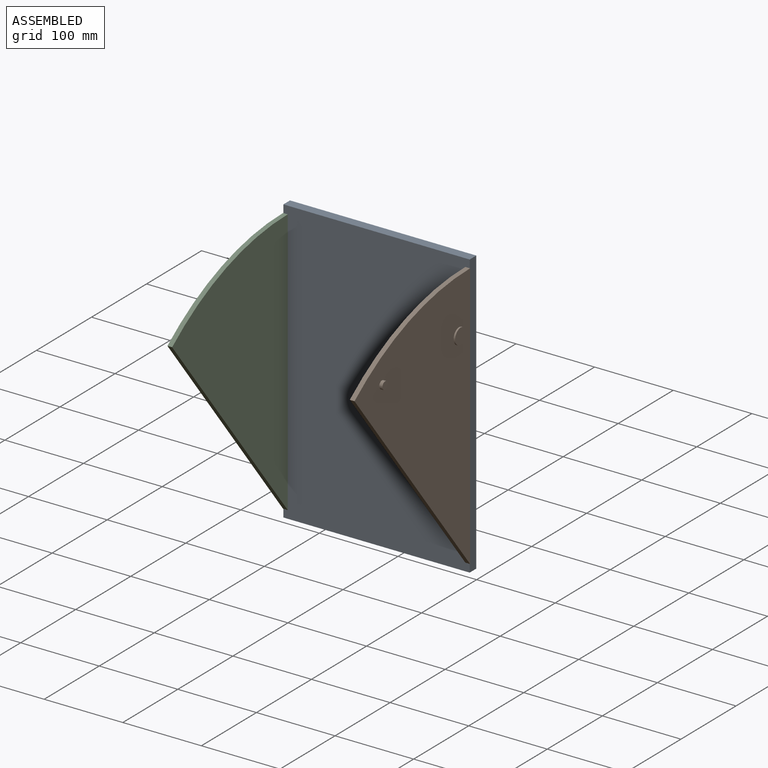
[diagram: assembled view]
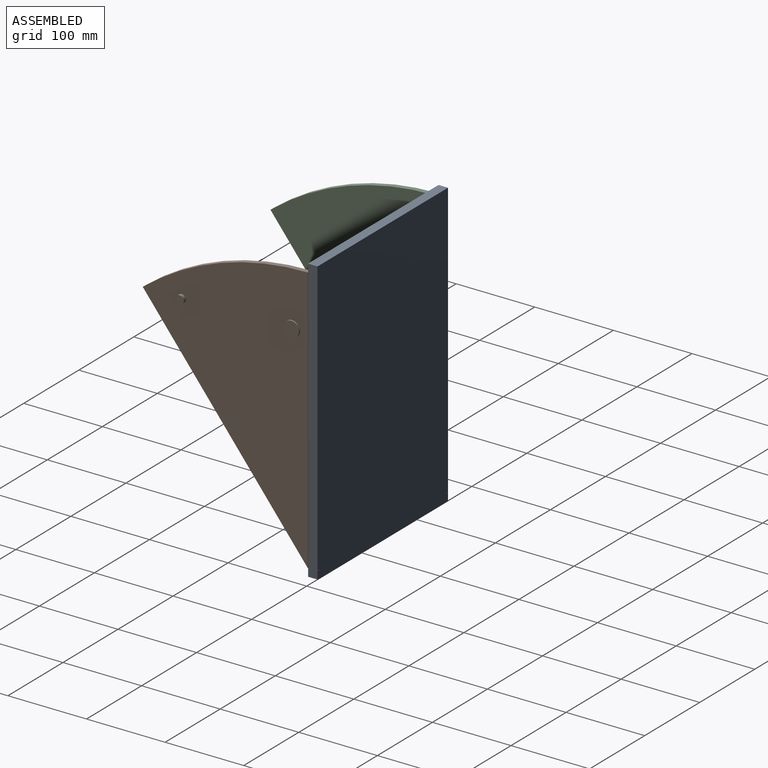
[diagram: assembled view, second angle]
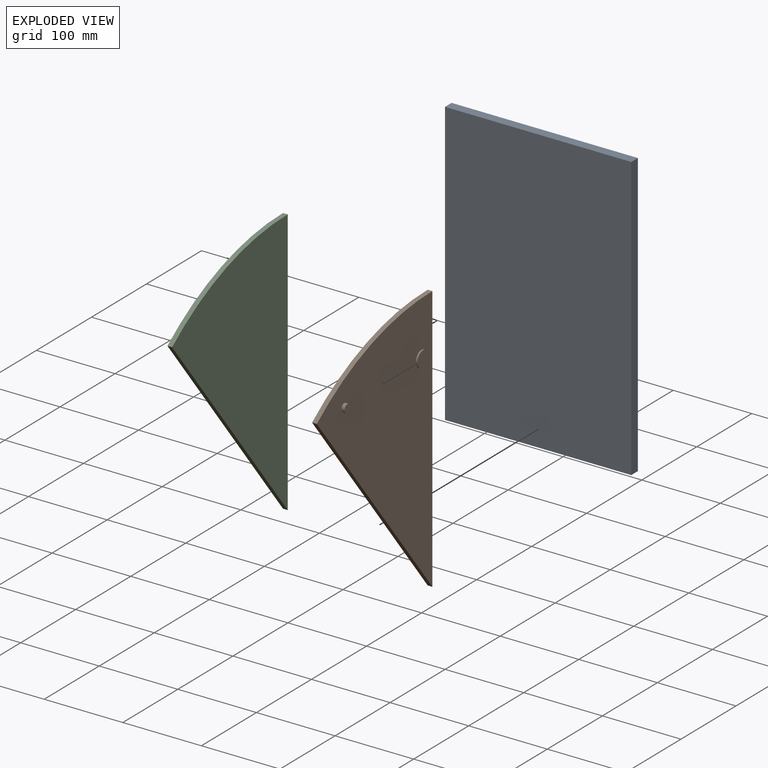
[diagram: exploded view]
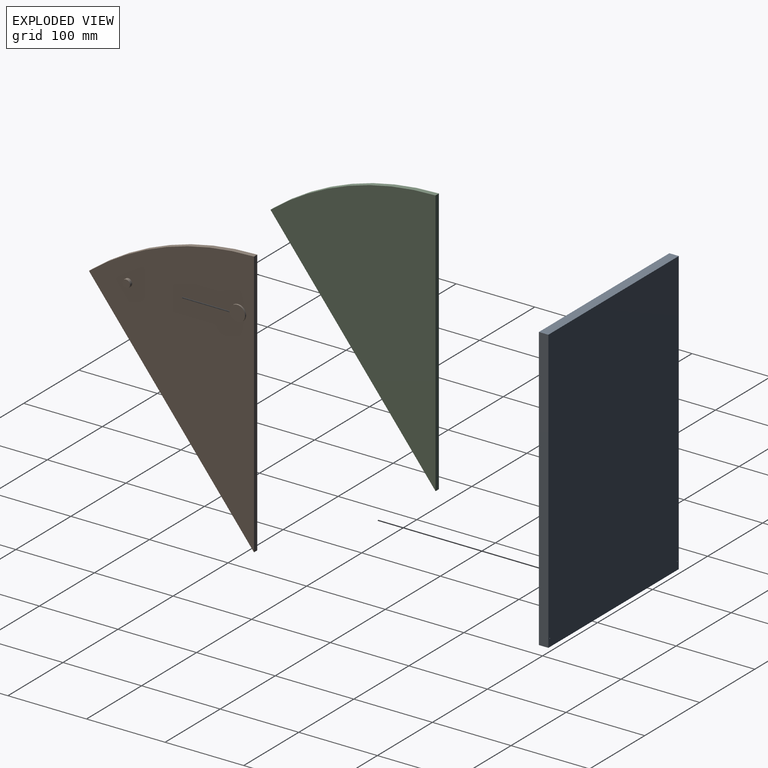
[diagram: exploded view, second angle]
ASSEMBLY  parts=3 mates=2
PART A: 8 faces, bbox 237x12x360 mm
  f0: plane 237x12mm, normal (0,0,1), area 2844mm2, adj f1,f3,f4,f5
  f1: plane 360x12mm, normal (-1,0,0), area 4320mm2, adj f0,f2,f4,f5
  f2: plane 237x12mm, normal (0,0,-1), area 2844mm2, adj f1,f3,f4,f5
  f3: plane 360x12mm, normal (1,0,0), area 4320mm2, adj f0,f2,f4,f5
  f4: plane 360x237mm, normal (0,-1,0), area 85318.4mm2, adj f0,f1,f2,f3,f6,f7
  f5: plane 360x237mm, normal (0,1,0), area 85318.4mm2, adj f0,f1,f2,f3,f6,f7
  f6: cylinder r=0.5mm len=12mm, axis (0,1,0), area 37.7mm2, adj f4,f5
  f7: cylinder r=0.5mm len=12mm, axis (0,1,0), area 37.7mm2, adj f4,f5
PART B: 9 faces, bbox 210x10x340 mm
  f0: plane 267.4x210mm, normal (-0.79,0,-0.62), area 2040mm2, adj f1,f2,f3,f4
  f1: plane 340x6mm, normal (1,0,0), area 2040mm2, adj f0,f2,f3,f4
  f2: cylinder r=340mm len=210mm, axis (0,1,0), area 1358.1mm2, adj f0,f1,f3,f4
  f3: plane 340x210mm, normal (0,-1,0), area 38087.5mm2, adj f0,f1,f2,f5,f7
  f4: plane 340x210mm, normal (0,1,0), area 38480.2mm2, adj f0,f1,f2
  f5: cylinder r=10mm len=20mm, axis (0,1,0), area 125.7mm2, adj f3,f6
  f6: plane 20x20mm, normal (0,-1,0), area 314.2mm2, adj f5
  f7: cylinder r=5mm len=10mm, axis (0,1,0), area 125.7mm2, adj f3,f8
  f8: plane 10x10mm, normal (0,-1,0), area 78.5mm2, adj f7
PART C: 9 faces, bbox 210x10x340 mm
  f0: plane 267.4x210mm, normal (-0.79,0,-0.62), area 2040mm2, adj f1,f2,f3,f4
  f1: plane 340x6mm, normal (1,0,0), area 2040mm2, adj f0,f2,f3,f4
  f2: cylinder r=340mm len=210mm, axis (0,-1,0), area 1358.1mm2, adj f0,f1,f3,f4
  f3: plane 340x210mm, normal (0,1,0), area 38087.5mm2, adj f0,f1,f2,f5,f7
  f4: plane 340x210mm, normal (0,-1,0), area 38480.2mm2, adj f0,f1,f2
  f5: cylinder r=10mm len=20mm, axis (0,-1,0), area 125.7mm2, adj f3,f6
  f6: plane 20x20mm, normal (0,1,0), area 314.2mm2, adj f5
  f7: cylinder r=5mm len=10mm, axis (0,-1,0), area 125.7mm2, adj f3,f8
  f8: plane 10x10mm, normal (0,1,0), area 78.5mm2, adj f7
PLACE A t=(-25.27,9.15,28.11)mm
PLACE B rot(axis=(0,0,1),90deg) t=(87.73,-132.22,19.55)mm
PLACE C rot(axis=(0,0,1),90deg) t=(-138.27,-2.85,198.11)mm
MATE fastened C.f1 <-> A.f7  axis (0,1,0) through (-141.27,-2.85,-141.89)mm
MATE fastened B.f1 <-> A.f6  axis (0,1,0) through (90.73,-2.85,-141.89)mm
